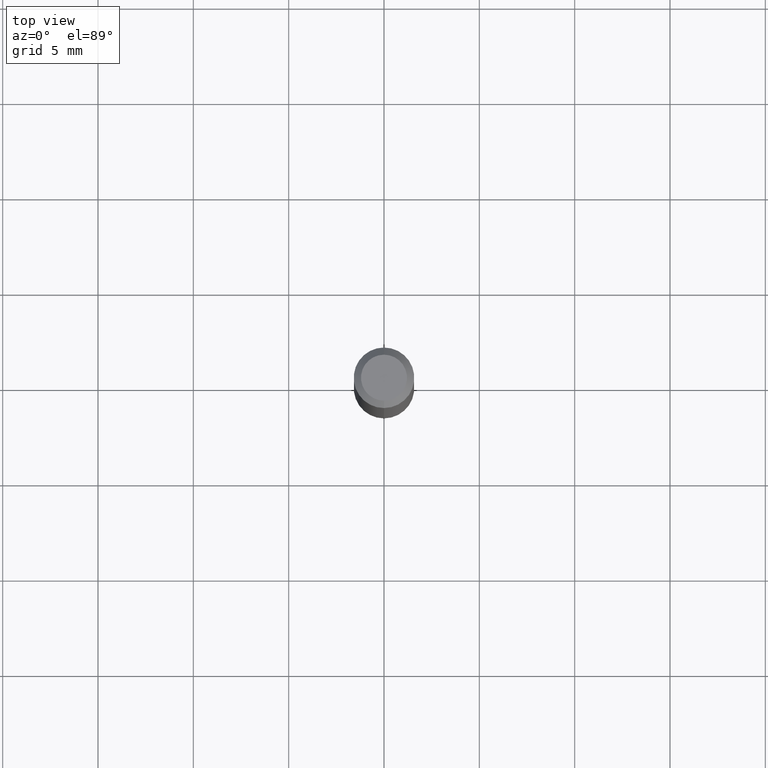
[diagram: clean part render]
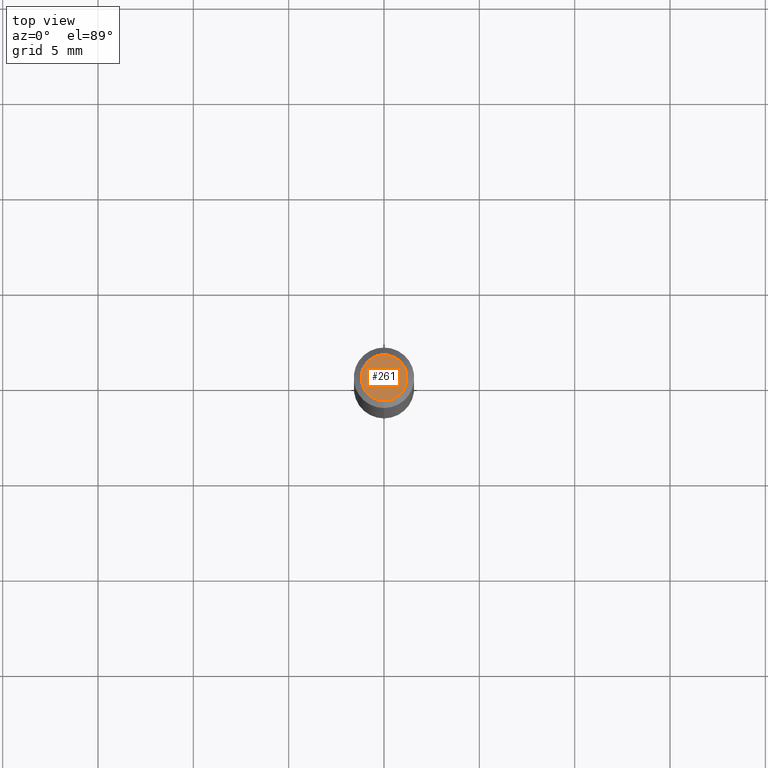
[diagram: same view with one face highlighted and labeled with its STEP entity id]
A machine part, top view. The second image highlights one B-rep face of the part: STEP entity #261.
In plain terms, the highlighted planar face has unit normal (0, -0, -1).
Its self-contained STEP definition (entity closure, byte-faithful):
#61 = EDGE_CURVE ( 'NONE', #422, #85, #401, .T. ) ;
#85 = VERTEX_POINT ( 'NONE', #193 ) ;
#118 = DIRECTION ( 'NONE',  ( -2.445458081085281379E-29, 3.491496697796572887E-15, 1.000000000000000000 ) ) ;
#119 = ORIENTED_EDGE ( 'NONE', *, *, #61, .T. ) ;
#123 = DIRECTION ( 'NONE',  ( -2.445458081085281379E-29, 3.491496697796572887E-15, 1.000000000000000000 ) ) ;
#144 = CARTESIAN_POINT ( 'NONE',  ( -5.856612206738854451E-45, 8.361763523269612628E-31, 2.394893722381746862E-16 ) ) ;
#169 = CARTESIAN_POINT ( 'NONE',  ( 3.316907271900976096E-16, 0.04749999999999999362, -4.610140702624983500E-17 ) ) ;
#192 = DIRECTION ( 'NONE',  ( -6.982962677686266711E-15, -1.000000000000000000, 3.491496697796572493E-15 ) ) ;
#193 = CARTESIAN_POINT ( 'NONE',  ( 3.840629472727447874E-16, 0.04749999999999999362, 7.364327909283752044E-17 ) ) ;
#195 = AXIS2_PLACEMENT_3D ( 'NONE', #457, #118, #192 ) ;
#221 = DIRECTION ( 'NONE',  ( 6.982962677686265922E-15, 1.000000000000000000, -3.491496697796572887E-15 ) ) ;
#261 = ADVANCED_FACE ( 'NONE', ( #277 ), #483, .F. ) ;
#264 = EDGE_CURVE ( 'NONE', #85, #422, #506, .T. ) ;
#277 = FACE_OUTER_BOUND ( 'NONE', #359, .T. ) ;
#288 = AXIS2_PLACEMENT_3D ( 'NONE', #144, #123, #486 ) ;
#337 = DIRECTION ( 'NONE',  ( 2.445458081085281099E-29, -3.491496697796572887E-15, -1.000000000000000000 ) ) ;
#359 = EDGE_LOOP ( 'NONE', ( #502, #119 ) ) ;
#401 = CIRCLE ( 'NONE', #195, 0.04749999999999999362 ) ;
#422 = VERTEX_POINT ( 'NONE', #438 ) ;
#438 = CARTESIAN_POINT ( 'NONE',  ( -3.773273898774340269E-16, -0.04749999999999999362, 4.053354653835118520E-16 ) ) ;
#440 = AXIS2_PLACEMENT_3D ( 'NONE', #169, #337, #221 ) ;
#457 = CARTESIAN_POINT ( 'NONE',  ( -5.856612206738854451E-45, 8.361763523269612628E-31, 2.394893722381746862E-16 ) ) ;
#483 = PLANE ( 'NONE',  #440 ) ;
#486 = DIRECTION ( 'NONE',  ( -6.982962677686266711E-15, -1.000000000000000000, 3.491496697796572493E-15 ) ) ;
#502 = ORIENTED_EDGE ( 'NONE', *, *, #264, .T. ) ;
#506 = CIRCLE ( 'NONE', #288, 0.04749999999999999362 ) ;